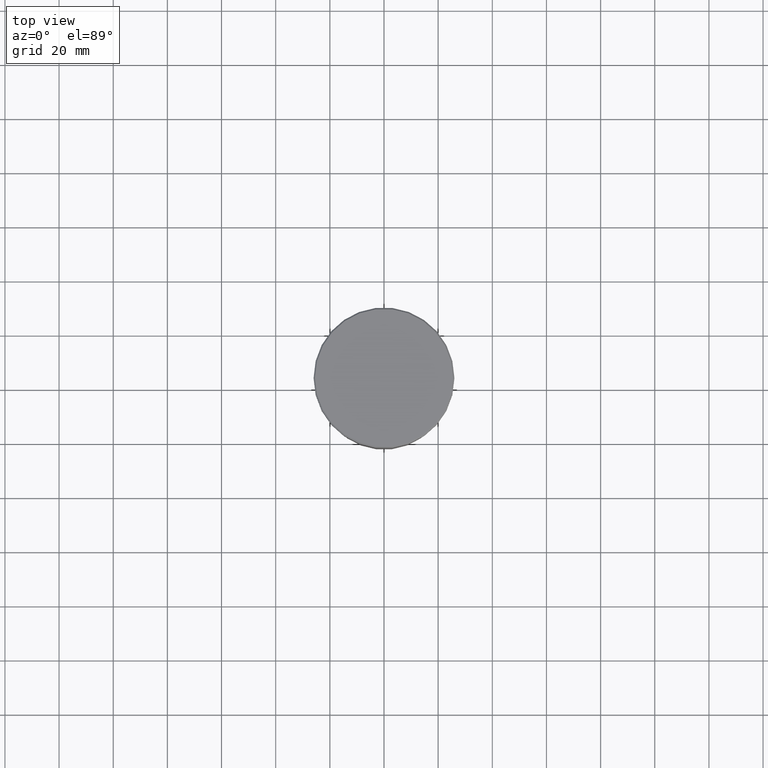
[diagram: clean part render]
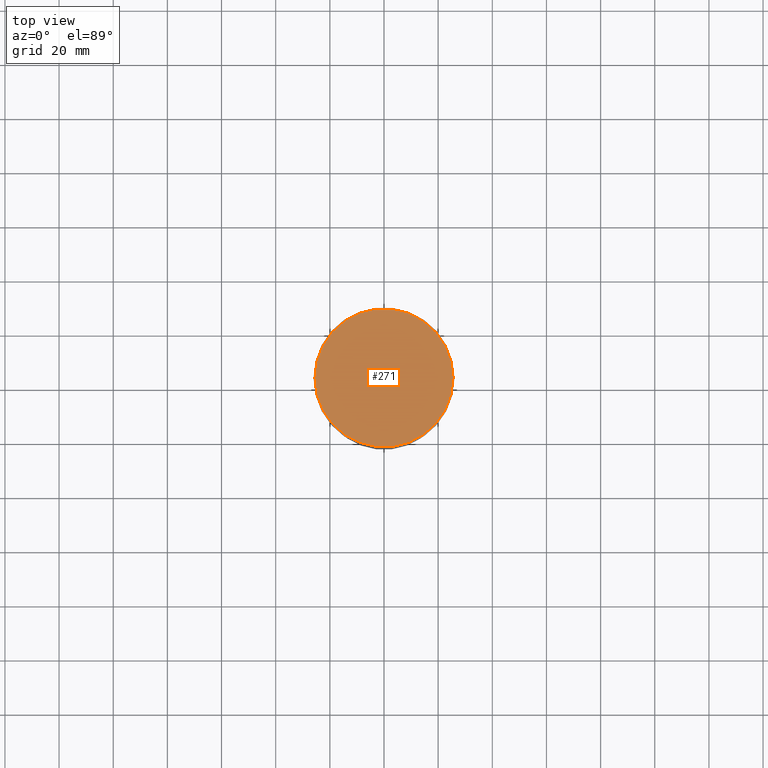
[diagram: same view with one face highlighted and labeled with its STEP entity id]
A machine part, top view. The second image highlights one B-rep face of the part: STEP entity #271.
In plain terms, the highlighted planar face has unit normal (0, -0, 1).
Its self-contained STEP definition (entity closure, byte-faithful):
#2 = DIRECTION ( 'NONE',  ( 1.000000000000000000, 0.000000000000000000, 0.000000000000000000 ) ) ;
#41 = DIRECTION ( 'NONE',  ( 0.000000000000000000, -0.000000000000000000, 1.000000000000000000 ) ) ;
#81 = VERTEX_POINT ( 'NONE', #1111 ) ;
#84 = AXIS2_PLACEMENT_3D ( 'NONE', #726, #737, #2 ) ;
#101 = ORIENTED_EDGE ( 'NONE', *, *, #220, .T. ) ;
#118 = CARTESIAN_POINT ( 'NONE',  ( -25.49999999999994316, 0.000000000000000000, 0.000000000000000000 ) ) ;
#204 = VERTEX_POINT ( 'NONE', #118 ) ;
#220 = EDGE_CURVE ( 'NONE', #204, #81, #765, .T. ) ;
#223 = CARTESIAN_POINT ( 'NONE',  ( 0.000000000000000000, 0.000000000000000000, 0.000000000000000000 ) ) ;
#229 = DIRECTION ( 'NONE',  ( 1.000000000000000000, 0.000000000000000000, 0.000000000000000000 ) ) ;
#237 = ORIENTED_EDGE ( 'NONE', *, *, #956, .T. ) ;
#259 = CIRCLE ( 'NONE', #84, 25.49999999999994316 ) ;
#271 = ADVANCED_FACE ( 'NONE', ( #848 ), #398, .T. ) ;
#371 = AXIS2_PLACEMENT_3D ( 'NONE', #223, #760, #406 ) ;
#398 = PLANE ( 'NONE',  #1169 ) ;
#406 = DIRECTION ( 'NONE',  ( 1.000000000000000000, 0.000000000000000000, 0.000000000000000000 ) ) ;
#726 = CARTESIAN_POINT ( 'NONE',  ( 0.000000000000000000, 0.000000000000000000, 0.000000000000000000 ) ) ;
#737 = DIRECTION ( 'NONE',  ( -0.000000000000000000, -0.000000000000000000, 1.000000000000000000 ) ) ;
#760 = DIRECTION ( 'NONE',  ( -0.000000000000000000, -0.000000000000000000, 1.000000000000000000 ) ) ;
#765 = CIRCLE ( 'NONE', #371, 25.49999999999994316 ) ;
#771 = EDGE_LOOP ( 'NONE', ( #101, #237 ) ) ;
#848 = FACE_OUTER_BOUND ( 'NONE', #771, .T. ) ;
#856 = CARTESIAN_POINT ( 'NONE',  ( 0.000000000000000000, 0.000000000000000000, 0.000000000000000000 ) ) ;
#956 = EDGE_CURVE ( 'NONE', #81, #204, #259, .T. ) ;
#1111 = CARTESIAN_POINT ( 'NONE',  ( 25.49999999999994316, 3.153465507804430854E-15, 0.000000000000000000 ) ) ;
#1169 = AXIS2_PLACEMENT_3D ( 'NONE', #856, #41, #229 ) ;